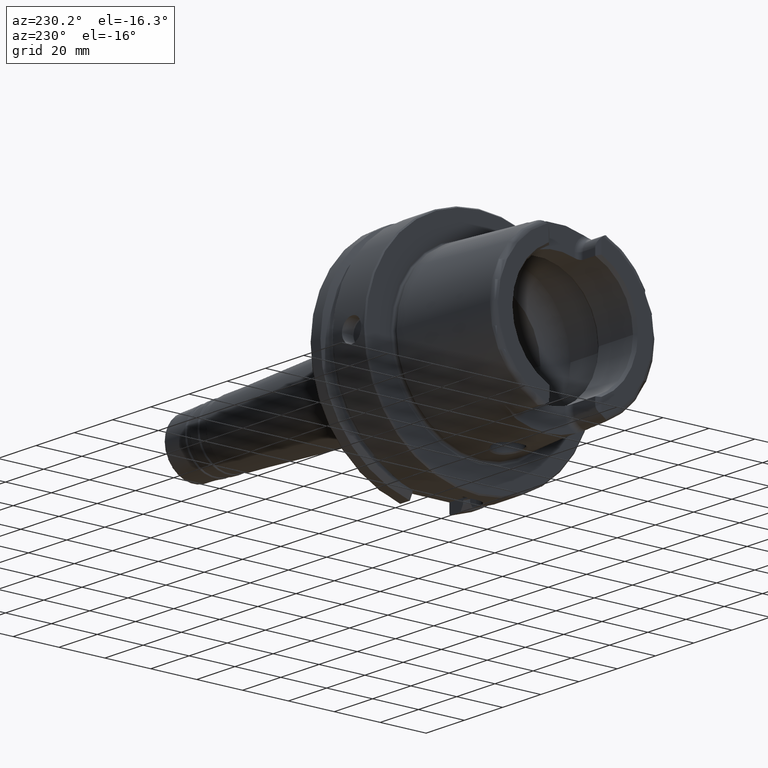
[diagram: clean part render]
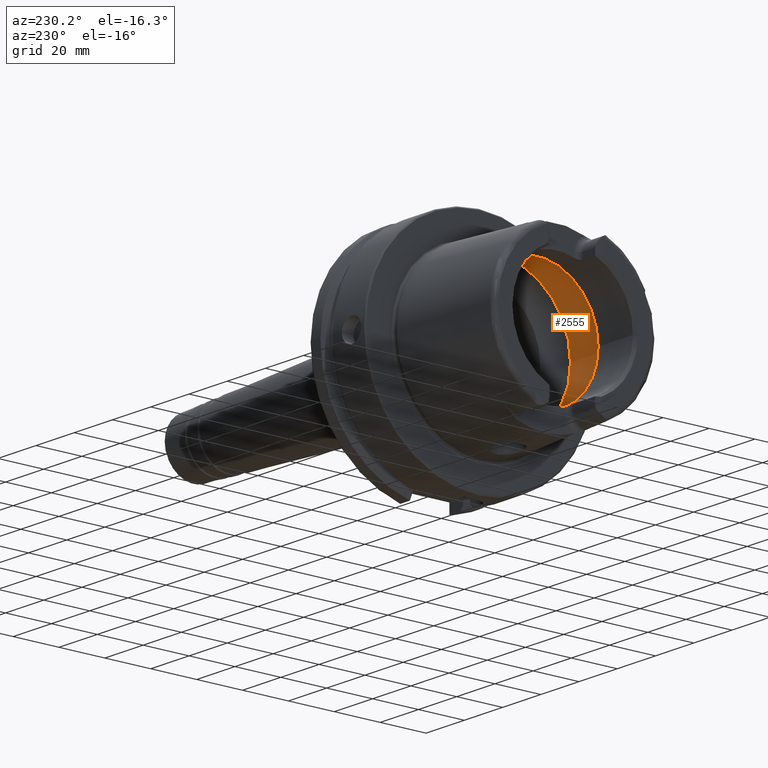
[diagram: same view with one face highlighted and labeled with its STEP entity id]
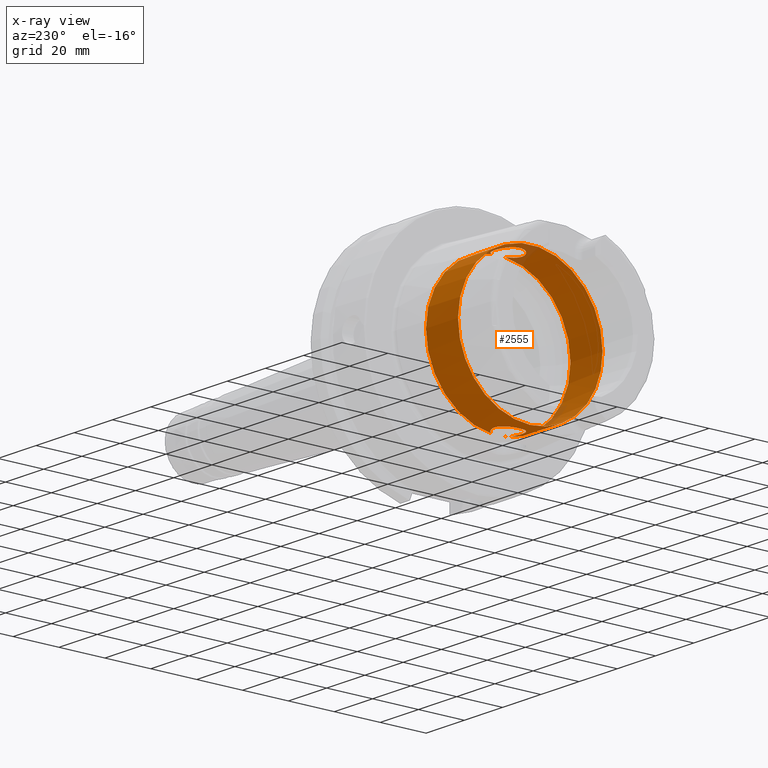
[diagram: x-ray of the same camera — body ghosted, the highlighted face saturated]
A machine part, auxiliary view. The second image highlights one B-rep face of the part: STEP entity #2555.
The next image is the same camera in x-ray: the body ghosted, the highlighted face saturated — about 4% of this face is hidden behind the body in this view.
In plain terms, the highlighted cylindrical surface (bore or boss wall) has radius 31.5 mm, axis along (-1, 0, 0).
Its self-contained STEP definition (entity closure, byte-faithful):
#49=B_SPLINE_CURVE_WITH_KNOTS('',3,(#4614,#4615,#4616,#4617,#4618,#4619,
#4620,#4621,#4622,#4623,#4624,#4625,#4626,#4627,#4628,#4629,#4630,#4631,
#4632,#4633,#4634,#4635,#4636,#4637,#4638,#4639,#4640,#4641,#4642,#4643,
#4644),.UNSPECIFIED.,.F.,.F.,(4,2,2,2,2,2,2,2,2,2,2,3,2,2,4),(-2.42966289251045,
-2.26609494287567,-2.03948128472637,-1.81286762657707,-1.58625396842777,
-1.35964031027847,-1.1330370617835,-0.906433813288535,-0.679830564793567,
-0.453227316298599,-0.226613658149299,0.,0.2266136581493,0.453227316298599,
0.616795265988555),.UNSPECIFIED.);
#54=B_SPLINE_CURVE_WITH_KNOTS('',3,(#4806,#4807,#4808,#4809,#4810,#4811,
#4812,#4813,#4814,#4815,#4816,#4817,#4818,#4819,#4820,#4821,#4822,#4823,
#4824,#4825,#4826,#4827,#4828,#4829,#4830,#4831,#4832,#4833,#4834,#4835,
#4836),.UNSPECIFIED.,.F.,.F.,(4,2,2,3,2,2,2,2,2,2,2,2,2,2,4),(-0.616795265933374,
-0.453227316298598,-0.226613658149299,0.,0.2266136581493,0.453227316298599,
0.679830564793567,0.906433813288535,1.1330370617835,1.35964031027847,1.58625396842777,
1.81286762657707,2.03948128472637,2.26609494287567,2.42966289256562),
 .UNSPECIFIED.);
#215=LINE('',#4854,#329);
#329=VECTOR('',#3429,31.5);
#404=CYLINDRICAL_SURFACE('',#2834,31.5);
#478=FACE_OUTER_BOUND('',#618,.T.);
#618=EDGE_LOOP('',(#1985,#1986,#1987,#1988,#1989,#1990,#1991,#1992,#1993,
#1994));
#827=CIRCLE('',#2835,31.5);
#828=CIRCLE('',#2836,31.5);
#829=CIRCLE('',#2837,31.5);
#830=CIRCLE('',#2838,31.5);
#831=CIRCLE('',#2839,31.5);
#832=CIRCLE('',#2840,31.5);
#1084=VERTEX_POINT('',#4602);
#1085=VERTEX_POINT('',#4613);
#1088=VERTEX_POINT('',#4793);
#1090=VERTEX_POINT('',#4805);
#1092=VERTEX_POINT('',#4851);
#1093=VERTEX_POINT('',#4853);
#1094=VERTEX_POINT('',#4855);
#1095=VERTEX_POINT('',#4857);
#1416=EDGE_CURVE('',#1085,#1084,#49,.T.);
#1422=EDGE_CURVE('',#1090,#1088,#54,.T.);
#1426=EDGE_CURVE('',#1092,#1088,#827,.T.);
#1427=EDGE_CURVE('',#1092,#1093,#215,.T.);
#1428=EDGE_CURVE('',#1093,#1094,#828,.T.);
#1429=EDGE_CURVE('',#1094,#1095,#829,.T.);
#1430=EDGE_CURVE('',#1095,#1093,#830,.T.);
#1431=EDGE_CURVE('',#1085,#1092,#831,.T.);
#1432=EDGE_CURVE('',#1090,#1084,#832,.T.);
#1985=ORIENTED_EDGE('',*,*,#1422,.T.);
#1986=ORIENTED_EDGE('',*,*,#1426,.F.);
#1987=ORIENTED_EDGE('',*,*,#1427,.T.);
#1988=ORIENTED_EDGE('',*,*,#1428,.T.);
#1989=ORIENTED_EDGE('',*,*,#1429,.T.);
#1990=ORIENTED_EDGE('',*,*,#1430,.T.);
#1991=ORIENTED_EDGE('',*,*,#1427,.F.);
#1992=ORIENTED_EDGE('',*,*,#1431,.F.);
#1993=ORIENTED_EDGE('',*,*,#1416,.T.);
#1994=ORIENTED_EDGE('',*,*,#1432,.F.);
#2555=ADVANCED_FACE('',(#478),#404,.F.);
#2834=AXIS2_PLACEMENT_3D('',#4850,#3425,#3426);
#2835=AXIS2_PLACEMENT_3D('',#4852,#3427,#3428);
#2836=AXIS2_PLACEMENT_3D('',#4856,#3430,#3431);
#2837=AXIS2_PLACEMENT_3D('',#4858,#3432,#3433);
#2838=AXIS2_PLACEMENT_3D('',#4859,#3434,#3435);
#2839=AXIS2_PLACEMENT_3D('',#4860,#3436,#3437);
#2840=AXIS2_PLACEMENT_3D('',#4861,#3438,#3439);
#3425=DIRECTION('center_axis',(-1.,0.,0.));
#3426=DIRECTION('ref_axis',(0.,1.,0.));
#3427=DIRECTION('center_axis',(-1.,0.,0.));
#3428=DIRECTION('ref_axis',(0.,0.,1.));
#3429=DIRECTION('',(-1.,0.,0.));
#3430=DIRECTION('center_axis',(-1.,0.,0.));
#3431=DIRECTION('ref_axis',(0.,0.,1.));
#3432=DIRECTION('center_axis',(-1.,0.,0.));
#3433=DIRECTION('ref_axis',(0.,0.,1.));
#3434=DIRECTION('center_axis',(-1.,0.,0.));
#3435=DIRECTION('ref_axis',(0.,0.,1.));
#3436=DIRECTION('center_axis',(-1.,0.,0.));
#3437=DIRECTION('ref_axis',(0.,0.,1.));
#3438=DIRECTION('center_axis',(-1.,0.,0.));
#3439=DIRECTION('ref_axis',(0.,0.,1.));
#4602=CARTESIAN_POINT('',(-9.74679434480896,2.89893607109041,-31.3663222207471));
#4613=CARTESIAN_POINT('',(-9.74679434480896,-2.89893607109041,-31.3663222207471));
#4614=CARTESIAN_POINT('Ctrl Pts',(-9.74679434480898,-2.8989360710904,-31.3663222207471));
#4615=CARTESIAN_POINT('Ctrl Pts',(-10.0245557799842,-3.40227174537722,-31.3198029657389));
#4616=CARTESIAN_POINT('Ctrl Pts',(-10.3735944692601,-3.85887584349869,-31.2651415110221));
#4617=CARTESIAN_POINT('Ctrl Pts',(-11.289042660848,-4.77432403508655,-31.140708727458));
#4618=CARTESIAN_POINT('Ctrl Pts',(-11.9624834305428,-5.23577180141274,-31.0633803744766));
#4619=CARTESIAN_POINT('Ctrl Pts',(-13.4401908644727,-5.84865855662958,-30.9538382316308));
#4620=CARTESIAN_POINT('Ctrl Pts',(-14.2446211395023,-6.00000000000001,-30.9232921921325));
#4621=CARTESIAN_POINT('Ctrl Pts',(-15.7553788604977,-6.00000000000001,-30.9232921921325));
#4622=CARTESIAN_POINT('Ctrl Pts',(-16.5598091355273,-5.84865855662958,-30.9538382316308));
#4623=CARTESIAN_POINT('Ctrl Pts',(-18.0375165694572,-5.23577180141275,-31.0633803744766));
#4624=CARTESIAN_POINT('Ctrl Pts',(-18.710957339152,-4.77432403508655,-31.140708727458));
#4625=CARTESIAN_POINT('Ctrl Pts',(-19.7742996118461,-3.71098176239249,-31.2852440928545));
#4626=CARTESIAN_POINT('Ctrl Pts',(-20.2357665181958,-3.03753058698362,-31.3619556484746));
#4627=CARTESIAN_POINT('Ctrl Pts',(-20.8486671603361,-1.55978711209124,-31.4700797313679));
#4628=CARTESIAN_POINT('Ctrl Pts',(-21.,-0.755344161649895,-31.5));
#4629=CARTESIAN_POINT('Ctrl Pts',(-21.,0.755344161649892,-31.5));
#4630=CARTESIAN_POINT('Ctrl Pts',(-20.8486671603361,1.55978711209124,-31.4700797313679));
#4631=CARTESIAN_POINT('Ctrl Pts',(-20.2357665181958,3.03753058698362,-31.3619556484746));
#4632=CARTESIAN_POINT('Ctrl Pts',(-19.7742996118461,3.71098176239249,-31.2852440928545));
#4633=CARTESIAN_POINT('Ctrl Pts',(-18.710957339152,4.77432403508655,-31.140708727458));
#4634=CARTESIAN_POINT('Ctrl Pts',(-18.0375165694572,5.23577180141274,-31.0633803744766));
#4635=CARTESIAN_POINT('Ctrl Pts',(-16.5598091355273,5.84865855662958,-30.9538382316308));
#4636=CARTESIAN_POINT('Ctrl Pts',(-15.7553788604977,6.00000000000001,-30.9232921921325));
#4637=CARTESIAN_POINT('Ctrl Pts',(-15.,6.00000000000001,-30.9232921921325));
#4638=CARTESIAN_POINT('Ctrl Pts',(-14.2446211395023,6.00000000000001,-30.9232921921325));
#4639=CARTESIAN_POINT('Ctrl Pts',(-13.4401908644727,5.84865855662958,-30.9538382316308));
#4640=CARTESIAN_POINT('Ctrl Pts',(-11.9624834305428,5.23577180141274,-31.0633803744766));
#4641=CARTESIAN_POINT('Ctrl Pts',(-11.289042660848,4.77432403508655,-31.140708727458));
#4642=CARTESIAN_POINT('Ctrl Pts',(-10.3735944691306,3.85887584336922,-31.2651415110397));
#4643=CARTESIAN_POINT('Ctrl Pts',(-10.0245557801354,3.40227174565105,-31.3198029657135));
#4644=CARTESIAN_POINT('Ctrl Pts',(-9.74679434480898,2.8989360710904,-31.3663222207471));
#4793=CARTESIAN_POINT('',(-9.74679434480896,-2.89893607109042,31.3663222207471));
#4805=CARTESIAN_POINT('',(-9.74679434480896,2.89893607109042,31.3663222207471));
#4806=CARTESIAN_POINT('Ctrl Pts',(-9.74679434480897,2.89893607109041,31.3663222207471));
#4807=CARTESIAN_POINT('Ctrl Pts',(-10.0245557799842,3.40227174537723,31.3198029657389));
#4808=CARTESIAN_POINT('Ctrl Pts',(-10.3735944692601,3.85887584349869,31.2651415110221));
#4809=CARTESIAN_POINT('Ctrl Pts',(-11.289042660848,4.77432403508655,31.140708727458));
#4810=CARTESIAN_POINT('Ctrl Pts',(-11.9624834305428,5.23577180141274,31.0633803744766));
#4811=CARTESIAN_POINT('Ctrl Pts',(-13.4401908644727,5.84865855662958,30.9538382316308));
#4812=CARTESIAN_POINT('Ctrl Pts',(-14.2446211395023,6.00000000000001,30.9232921921325));
#4813=CARTESIAN_POINT('Ctrl Pts',(-15.,6.00000000000001,30.9232921921325));
#4814=CARTESIAN_POINT('Ctrl Pts',(-15.7553788604977,6.00000000000001,30.9232921921325));
#4815=CARTESIAN_POINT('Ctrl Pts',(-16.5598091355273,5.84865855662958,30.9538382316308));
#4816=CARTESIAN_POINT('Ctrl Pts',(-18.0375165694572,5.23577180141274,31.0633803744766));
#4817=CARTESIAN_POINT('Ctrl Pts',(-18.710957339152,4.77432403508655,31.140708727458));
#4818=CARTESIAN_POINT('Ctrl Pts',(-19.7742996118461,3.71098176239249,31.2852440928545));
#4819=CARTESIAN_POINT('Ctrl Pts',(-20.2357665181958,3.03753058698362,31.3619556484746));
#4820=CARTESIAN_POINT('Ctrl Pts',(-20.8486671603361,1.55978711209124,31.4700797313679));
#4821=CARTESIAN_POINT('Ctrl Pts',(-21.,0.755344161649892,31.5));
#4822=CARTESIAN_POINT('Ctrl Pts',(-21.,-0.755344161649894,31.5));
#4823=CARTESIAN_POINT('Ctrl Pts',(-20.8486671603361,-1.55978711209124,31.4700797313679));
#4824=CARTESIAN_POINT('Ctrl Pts',(-20.2357665181958,-3.03753058698362,31.3619556484746));
#4825=CARTESIAN_POINT('Ctrl Pts',(-19.7742996118461,-3.71098176239249,31.2852440928545));
#4826=CARTESIAN_POINT('Ctrl Pts',(-18.710957339152,-4.77432403508655,31.140708727458));
#4827=CARTESIAN_POINT('Ctrl Pts',(-18.0375165694572,-5.23577180141274,31.0633803744766));
#4828=CARTESIAN_POINT('Ctrl Pts',(-16.5598091355273,-5.84865855662958,30.9538382316308));
#4829=CARTESIAN_POINT('Ctrl Pts',(-15.7553788604977,-6.00000000000001,30.9232921921325));
#4830=CARTESIAN_POINT('Ctrl Pts',(-14.2446211395023,-6.00000000000001,30.9232921921325));
#4831=CARTESIAN_POINT('Ctrl Pts',(-13.4401908644727,-5.84865855662958,30.9538382316308));
#4832=CARTESIAN_POINT('Ctrl Pts',(-11.9624834305428,-5.23577180141274,31.0633803744766));
#4833=CARTESIAN_POINT('Ctrl Pts',(-11.289042660848,-4.77432403508655,31.140708727458));
#4834=CARTESIAN_POINT('Ctrl Pts',(-10.3735944691306,-3.85887584336922,31.2651415110397));
#4835=CARTESIAN_POINT('Ctrl Pts',(-10.0245557801353,-3.40227174565106,31.3198029657135));
#4836=CARTESIAN_POINT('Ctrl Pts',(-9.74679434480897,-2.89893607109041,31.3663222207471));
#4850=CARTESIAN_POINT('Origin',(-18.1430342013226,0.,0.));
#4851=CARTESIAN_POINT('',(-9.74679434480896,-31.5,3.85763741731416E-15));
#4852=CARTESIAN_POINT('Origin',(-9.74679434480896,0.,0.));
#4853=CARTESIAN_POINT('',(-26.5392740578363,-31.5,3.85763741731416E-15));
#4854=CARTESIAN_POINT('',(-18.1430342013226,-31.5,3.85763741731416E-15));
#4855=CARTESIAN_POINT('',(-26.5392740578363,31.5,0.));
#4856=CARTESIAN_POINT('Origin',(-26.5392740578363,0.,0.));
#4857=CARTESIAN_POINT('',(-26.5392740578363,-3.85763741731416E-15,-31.5));
#4858=CARTESIAN_POINT('Origin',(-26.5392740578363,0.,0.));
#4859=CARTESIAN_POINT('Origin',(-26.5392740578363,0.,0.));
#4860=CARTESIAN_POINT('Origin',(-9.74679434480896,0.,0.));
#4861=CARTESIAN_POINT('Origin',(-9.74679434480896,0.,0.));